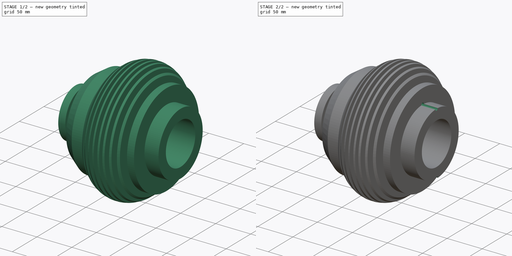
[diagram: build sequence overview — one tinted view per stage of 2, left to right]
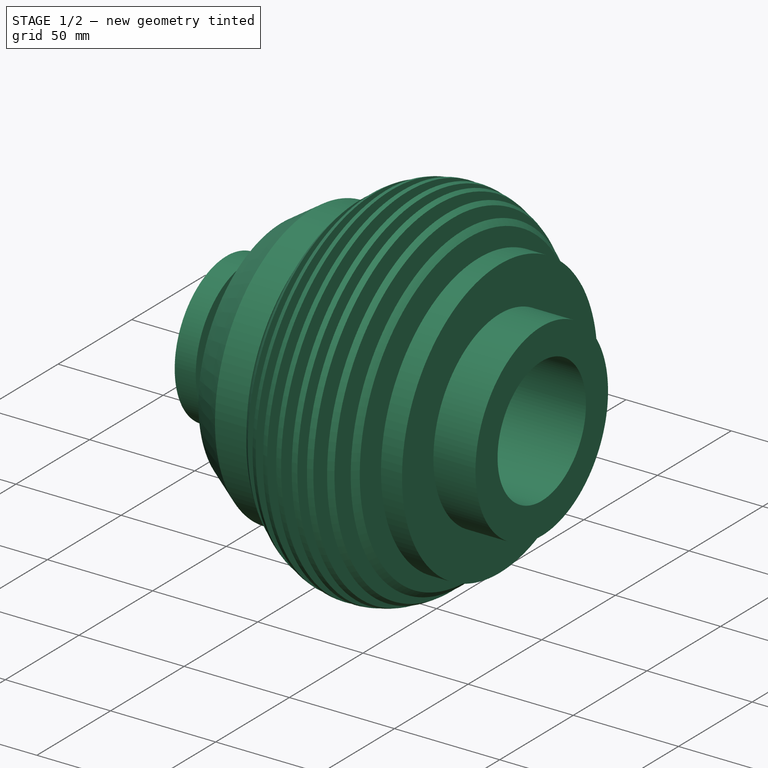
[diagram: stage 1 of 2 — iso view after this stage's code; geometry added in this stage tinted green]
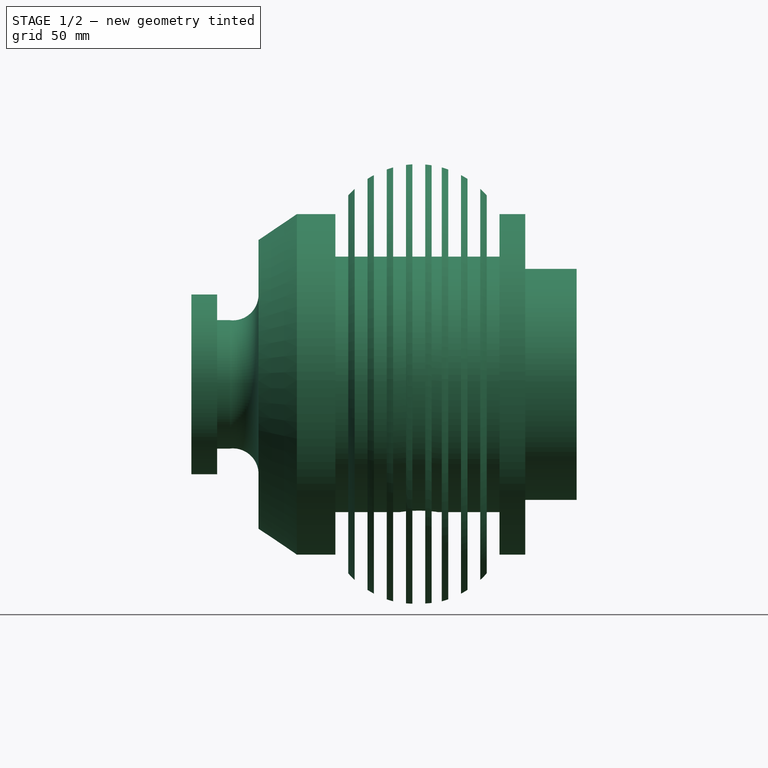
[diagram: stage 1 of 2 — front view after this stage's code; geometry added in this stage tinted green]
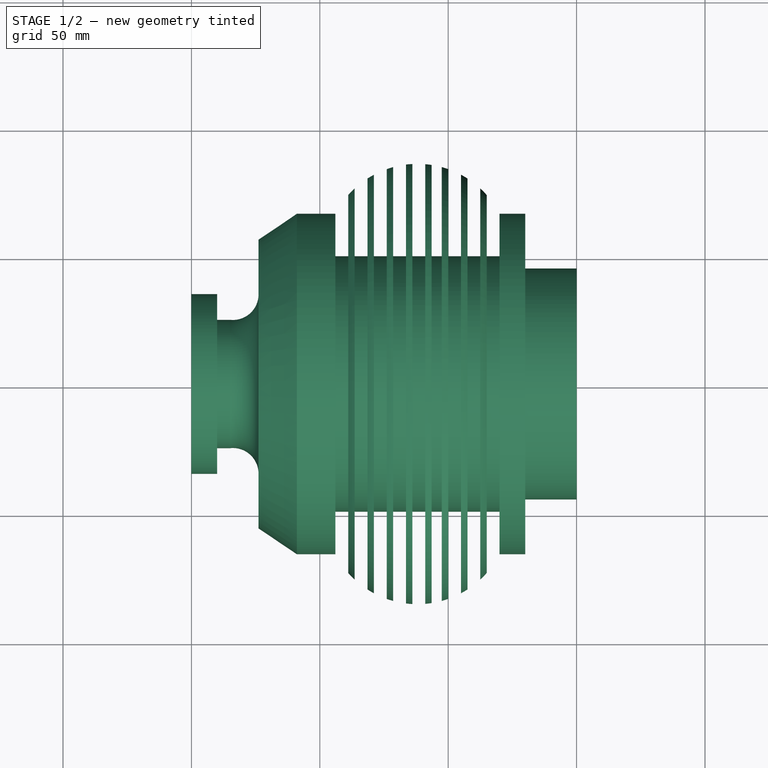
[diagram: stage 1 of 2 — top view after this stage's code; geometry added in this stage tinted green]
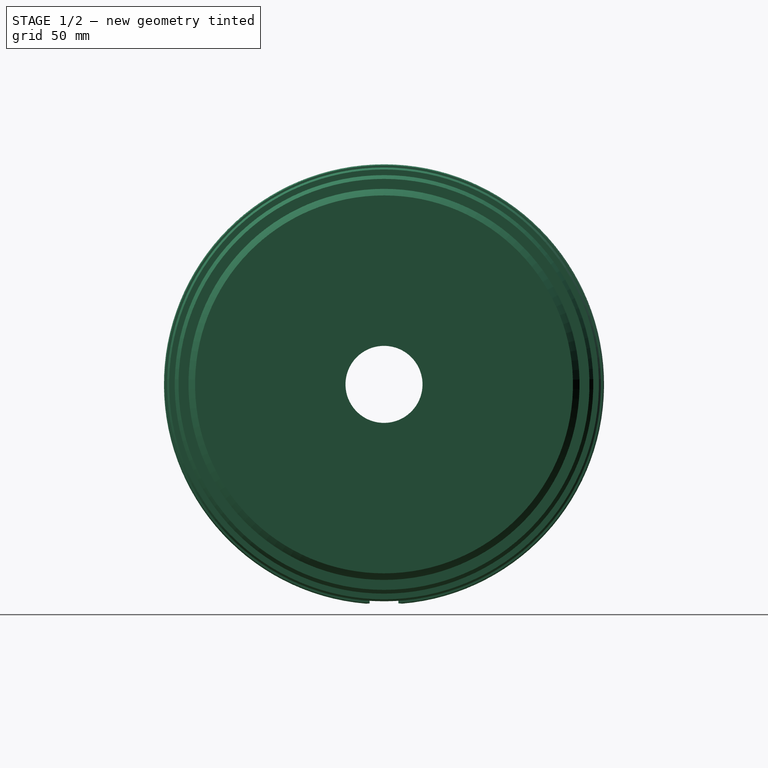
[diagram: stage 1 of 2 — right view after this stage's code; geometry added in this stage tinted green]
FCSTD DOCUMENT  (FreeCAD 1.0R39285 (Git))
Label: worksheet_exe.6
License: All rights reserved
LicenseURL: https://en.wikipedia.org/wiki/All_rights_reserved
objects: Sketcher::SketchObject×3, PartDesign::Pocket×2, PartDesign::Revolution×1, PartDesign::Plane×1, PartDesign::Body×1
note: 17 computed .brp shape members not serialized (recipe doc carries the construction recipe); baked Part::Feature solids carry a one-line shape summary decoded from their .brp

FEATURE [Sketcher::SketchObject] Sketch
  ArcFitTolerance = 1e-06
  AttachmentSupport = -> [XZ_Plane]
  FullyConstrained = true
  MakeInternals = false
  MapMode = 5
  Placement = pos=(0,0,0) rot=(1,0,0;1.5708rad)
  sketch-geometry (59):
    g0: LineSegment StartX=0 StartY=15 StartZ=0 EndX=50 EndY=15 EndZ=0
    g1: LineSegment StartX=50 StartY=15 StartZ=0 EndX=50 EndY=30 EndZ=0
    g2: LineSegment StartX=50 StartY=30 StartZ=0 EndX=150 EndY=30 EndZ=0
    g3: LineSegment StartX=150 StartY=30 StartZ=0 EndX=150 EndY=45 EndZ=0
    g4: LineSegment StartX=150 StartY=45 StartZ=0 EndX=130 EndY=45 EndZ=0
    g5: LineSegment StartX=130 StartY=45 StartZ=0 EndX=130 EndY=66.3 EndZ=0
    g6: LineSegment StartX=130 StartY=66.3 StartZ=0 EndX=120 EndY=66.3 EndZ=0
    g7: LineSegment StartX=120 StartY=66.3 StartZ=0 EndX=120 EndY=49.7446 EndZ=0
    g8: LineSegment StartX=120 StartY=49.7446 StartZ=0 EndX=115 EndY=49.7446 EndZ=0
    g9: LineSegment StartX=15 StartY=25 StartZ=0 EndX=10 EndY=25 EndZ=0
    g10: LineSegment StartX=10 StartY=25 StartZ=0 EndX=10 EndY=35 EndZ=0
    g11: LineSegment StartX=10 StartY=35 StartZ=0 EndX=0 EndY=35 EndZ=0
    g12: LineSegment StartX=0 StartY=35 StartZ=0 EndX=0 EndY=15 EndZ=0
    g13: ArcOfCircle CenterX=16.1424 CenterY=34.9345 CenterZ=0 NormalX=0 NormalY=0 NormalZ=1 AngleXU=0 Radius=10 StartAngle=4.5979 EndAngle=6.28319
    g14: LineSegment StartX=26.1424 StartY=34.9345 StartZ=0 EndX=26.1424 EndY=56.2345 EndZ=0
    g15: LineSegment StartX=26.1424 StartY=56.2345 StartZ=0 EndX=41.0651 EndY=66.3 EndZ=0
    g16: LineSegment StartX=41.0651 StartY=66.3 StartZ=0 EndX=56.0651 EndY=66.3 EndZ=0
    g17: LineSegment StartX=56.0651 StartY=66.3 StartZ=0 EndX=56.0651 EndY=49.7446 EndZ=0
    g18: ArcOfCircle [constr] CenterX=88.0326 CenterY=49.7446 CenterZ=0 NormalX=0 NormalY=0 NormalZ=1 AngleXU=0 Radius=36 StartAngle=0.477852 EndAngle=2.66374
    g19: LineSegment StartX=56.0651 StartY=49.7446 StartZ=0 EndX=61.0651 EndY=49.7446 EndZ=0
    g20: LineSegment StartX=61.0651 StartY=49.7446 StartZ=0 EndX=61.0651 EndY=73.5932 EndZ=0
    g21: GeomPoint X=63.5651 Y=49.7446 Z=0
    g22: LineSegment StartX=63.5651 StartY=49.7446 StartZ=0 EndX=63.5651 EndY=76.1518 EndZ=0
    g23: LineSegment StartX=63.5651 StartY=49.7446 StartZ=0 EndX=68.5651 EndY=49.7446 EndZ=0
    g24: GeomPoint X=71.0651 Y=49.7446 Z=0
    g25: LineSegment StartX=68.5651 StartY=49.7446 StartZ=0 EndX=68.5651 EndY=80.0269 EndZ=0
    g26: LineSegment StartX=71.0651 StartY=49.7446 StartZ=0 EndX=71.0651 EndY=81.4952 EndZ=0
    g27: LineSegment StartX=71.0651 StartY=49.7446 StartZ=0 EndX=76.0651 EndY=49.7446 EndZ=0
    g28: LineSegment StartX=76.0651 StartY=49.7446 StartZ=0 EndX=76.0651 EndY=83.6972 EndZ=0
    g29: GeomPoint X=78.5651 Y=49.7446 Z=0
    g30: LineSegment StartX=78.5651 StartY=49.7446 StartZ=0 EndX=78.5651 EndY=84.4774 EndZ=0
    g31: LineSegment StartX=78.5651 StartY=49.7446 StartZ=0 EndX=83.5651 EndY=49.7446 EndZ=0
    g32: LineSegment StartX=83.5651 StartY=49.7446 StartZ=0 EndX=83.5651 EndY=85.4663 EndZ=0
    g33: GeomPoint X=86.0651 Y=49.7446 Z=0
    g34: LineSegment StartX=86.0651 StartY=49.7446 StartZ=0 EndX=86.0651 EndY=85.6908 EndZ=0
    g35: LineSegment StartX=86.0651 StartY=49.7446 StartZ=0 EndX=91.0651 EndY=49.7446 EndZ=0
    g36: LineSegment StartX=91.0651 StartY=49.7446 StartZ=0 EndX=91.0651 EndY=85.6166 EndZ=0
    g37: GeomPoint X=93.5651 Y=49.7446 Z=0
    g38: LineSegment StartX=93.5651 StartY=49.7446 StartZ=0 EndX=93.5651 EndY=85.3169 EndZ=0
    g39: LineSegment StartX=115 StartY=49.7446 StartZ=0 EndX=115 EndY=73.5932 EndZ=0
    g40: GeomPoint X=112.5 Y=49.7446 Z=0
    g41: LineSegment StartX=112.5 StartY=49.7446 StartZ=0 EndX=112.5 EndY=76.1518 EndZ=0
    g42: LineSegment StartX=112.5 StartY=49.7446 StartZ=0 EndX=107.5 EndY=49.7446 EndZ=0
    g43: LineSegment StartX=107.5 StartY=49.7446 StartZ=0 EndX=107.5 EndY=80.0269 EndZ=0
    g44: GeomPoint X=105 Y=49.7446 Z=0
    g45: LineSegment StartX=105 StartY=49.7446 StartZ=0 EndX=105 EndY=81.4952 EndZ=0
    g46: LineSegment StartX=105 StartY=49.7446 StartZ=0 EndX=100 EndY=49.7446 EndZ=0
    g47: LineSegment StartX=93.5651 StartY=49.7446 StartZ=0 EndX=97.5 EndY=49.7446 EndZ=0
    g48: LineSegment StartX=97.5 StartY=49.7446 StartZ=0 EndX=97.5 EndY=84.4774 EndZ=0
    g49: LineSegment StartX=100 StartY=49.7446 StartZ=0 EndX=100 EndY=83.6972 EndZ=0
    g50: ArcOfCircle CenterX=88.0326 CenterY=49.7446 CenterZ=0 NormalX=0 NormalY=0 NormalZ=1 AngleXU=0 Radius=36 StartAngle=2.31808 EndAngle=2.41749
    g51: ArcOfCircle CenterX=88.0326 CenterY=49.7446 CenterZ=0 NormalX=0 NormalY=0 NormalZ=1 AngleXU=0 Radius=36 StartAngle=2.06158 EndAngle=2.14214
    g52: ArcOfCircle CenterX=88.0326 CenterY=49.7446 CenterZ=0 NormalX=0 NormalY=0 NormalZ=1 AngleXU=0 Radius=36 StartAngle=1.83691 EndAngle=1.90967
    g53: ArcOfCircle CenterX=88.0326 CenterY=49.7446 CenterZ=0 NormalX=0 NormalY=0 NormalZ=1 AngleXU=0 Radius=36 StartAngle=1.62547 EndAngle=1.69521
    g54: ArcOfCircle CenterX=88.0326 CenterY=49.7446 CenterZ=0 NormalX=0 NormalY=0 NormalZ=1 AngleXU=0 Radius=36 StartAngle=1.4165 EndAngle=1.48646
    g55: ArcOfCircle CenterX=88.0326 CenterY=49.7446 CenterZ=0 NormalX=0 NormalY=0 NormalZ=1 AngleXU=0 Radius=36 StartAngle=1.23192 EndAngle=1.30468
    g56: ArcOfCircle CenterX=88.0326 CenterY=49.7446 CenterZ=0 NormalX=0 NormalY=0 NormalZ=1 AngleXU=0 Radius=36 StartAngle=0.999453 EndAngle=1.08001
    g57: ArcOfCircle CenterX=88.0326 CenterY=49.7446 CenterZ=0 NormalX=0 NormalY=0 NormalZ=1 AngleXU=0 Radius=36 StartAngle=0.7241 EndAngle=0.823509
    g58: LineSegment [constr] StartX=0 StartY=0 StartZ=0 EndX=230 EndY=0 EndZ=0
  constraints (163):
    c: Coincident(g0,g1)
    c: Vertical(g1)
    c: Coincident(g1,g2)
    c: Horizontal(g2)
    c: Coincident(g2,g3)
    c: Vertical(g3)
    c: Coincident(g3,g4)
    c: Horizontal(g4)
    c: Coincident(g4,g5)
    c: Vertical(g5)
    c: Coincident(g5,g6)
    c: Horizontal(g6)
    c: Coincident(g6,g7)
    c: Vertical(g7)
    c: Coincident(g7,g8)
    c: Coincident(g9,g10)
    c: Coincident(g10,g11)
    c: Horizontal(g11)
    c: Coincident(g11,g12)
    c: Vertical(g12)
    c: DistanceX(g0,g0) = 50
    c: DistanceX(g2,g2) = 100
    c: DistanceY(g3,g3) = 15
    c: Vertical(g10)
    c: DistanceX(g11,g11) = 10
    c: DistanceX(g9,g9) = 5
    c: DistanceY(g2,g5) = 36.3
    c: DistanceY(g1,g1) = 15
    c: DistanceX(g4,g4) = 20
    c: DistanceX(g6,g6) = 10
    c: Vertical(g14)
    c: Coincident(g14,g15)
    c: Coincident(g15,g16)
    c: Horizontal(g16)
    c: Coincident(g16,g17)
    c: Vertical(g17)
    c: DistanceY(g14,g14) = 21.3
    c: DistanceX(g16,g16) = 15
    c: Angle(g15,g16) = 2.54818
    c: Radius(g13) = 10
    c: Horizontal(g6,g16)
    c: Distance(g15,g15) = 18
    c: Coincident(g13,g9)
    c: Horizontal(g9)
    c: Tangent(g14,g13) = -1.5708
    c: Coincident(g18,g16)
    c: Coincident(g18,g6)
    c: Distance(g19) = 5
    c: Horizontal(g19)
    c: Coincident(g19,g17)
    c: DistanceX(g8,g8) = 5
    c: Horizontal(g8)
    c: Horizontal(g18,g17)
    c: Coincident(g19,g20)
    c: PointOnObject(g20,g18)
    c: Vertical(g20)
    c: Horizontal(g21,g19)
    c: DistanceX(g19,g21) = 2.5
    c: Coincident(g22,g21)
    c: Vertical(g22)
    c: Distance(g23) = 5
    c: Horizontal(g23)
    c: Coincident(g23,g21)
    c: Horizontal(g24,g17)
    c: DistanceX(g23,g24) = 2.5
    c: Coincident(g25,g23)
    c: PointOnObject(g25,g18)
    c: Vertical(g25)
    c: Coincident(g26,g24)
    c: Vertical(g26)
    c: Distance(g27) = 5
    c: Horizontal(g27)
    c: Coincident(g27,g24)
    c: Coincident(g28,g27)
    c: PointOnObject(g28,g18)
    c: Vertical(g28)
    c: Horizontal(g29,g27)
    c: Distance(g29,g27) = 2.5
    c: Coincident(g30,g29)
    c: Vertical(g30)
    c: Distance(g31) = 5
    c: Horizontal(g31)
    c: Coincident(g31,g29)
    c: Coincident(g32,g31)
    c: Vertical(g32)
    c: PointOnObject(g32,g18)
    c: Horizontal(g7,g31)
    c: Horizontal(g33,g31)
    c: Distance(g33,g31) = 2.5
    c: Coincident(g34,g33)
    c: Vertical(g34)
    c: Distance(g35) = 5
    c: Horizontal(g35)
    c: Coincident(g35,g33)
    c: Coincident(g36,g35)
    c: Vertical(g36)
    c: PointOnObject(g36,g18)
    c: Horizontal(g37,g35)
    c: DistanceX(g35,g37) = 2.5
    c: Coincident(g38,g37)
    c: Vertical(g38)
    c: Coincident(g39,g8)
    c: PointOnObject(g39,g18)
    c: Vertical(g39)
    c: Horizontal(g8,g40)
    c: Distance(g8,g40) = 2.5
    c: Coincident(g41,g40)
    c: Vertical(g41)
    c: Distance(g42) = 5
    c: Horizontal(g42)
    c: Coincident(g42,g40)
    c: Coincident(g43,g42)
    c: PointOnObject(g43,g18)
    c: Vertical(g43)
    c: Horizontal(g42,g44)
    c: Coincident(g45,g44)
    c: Vertical(g45)
    c: Distance(g44,g42) = 2.5
    c: Distance(g46) = 5
    c: Horizontal(g46)
    c: Coincident(g46,g44)
    c: Horizontal(g47)
    c: Coincident(g47,g37)
    c: Coincident(g48,g47)
    c: PointOnObject(g48,g18)
    c: Vertical(g48)
    c: Coincident(g49,g46)
    c: Vertical(g49)
    c: DistanceX(g47,g46) = 2.5
    c: Coincident(g51,g50)
    c: Coincident(g51,g25)
    c: Coincident(g51,g26)
    c: Coincident(g52,g18)
    c: Coincident(g52,g28)
    c: Coincident(g52,g30)
    c: Coincident(g53,g18)
    c: Coincident(g53,g32)
    c: Coincident(g53,g34)
    c: Coincident(g55,g54)
    c: Coincident(g55,g48)
    c: Coincident(g55,g49)
    c: Coincident(g57,g56)
    c: Coincident(g57,g41)
    c: Coincident(g57,g39)
    c: Coincident(g56,g18)
    c: Coincident(g54,g18)
    c: Coincident(g50,g18)
    c: Coincident(g22,g50)
    c: Coincident(g50,g20)
    c: Coincident(g54,g38)
    c: Coincident(g36,g54)
    c: Coincident(g45,g56)
    c: Coincident(g43,g56)
    c: Radius(g18) = 36
    c: Coincident(g0,g12)
    c: Horizontal(g0)
    c: Coincident(g58,g-1)
    c: PointOnObject(g58,g-1)
    c: DistanceX(g58,g58) = 230
    c: DistanceY(g12,g12) = 20
    c: DistanceY(g10,g10) = 10
    c: DistanceY(g-1,g0) = 15
    c: Vertical(g0,g58)
FEATURE [PartDesign::Revolution] Revolution
  Angle = 360
  Angle2 = 60
  Axis = (1,0,0)
  Base = (0,0,0)
  Placement = pos=(0,0,0) rot=(1,0,0;1.5708rad)
  Profile = -> Sketch
  ReferenceAxis = -> X_Axis
  Refine = true
  Suppressed = false
  Type = 0
FEATURE [PartDesign::Plane] DatumPlane
  AttachmentOffset = pos=(0,0,0) rot=(1,0,0;1.5708rad)
  AttachmentSupport = -> [Revolution]
  Length = 206.001
  MapMode = 45
  Placement = pos=(48.5651,3e-16,0) rot=(0.707107,0.707107,0;3.14159rad)
  ResizeMode = 0
  Width = 209.635
FEATURE [Sketcher::SketchObject] Sketch001
  ArcFitTolerance = 1e-06
  AttachmentSupport = -> [DatumPlane]
  ExternalGeometry = -> [Revolution]
  FullyConstrained = false
  MakeInternals = false
  MapMode = 5
  Placement = pos=(48.5651,3e-16,0) rot=(0.707107,0.707107,0;3.14159rad)
  sketch-geometry (4):
    g0: GeomPoint X=0 Y=0 Z=0
    g1: Circle CenterX=0 CenterY=40 CenterZ=0 NormalX=0 NormalY=0 NormalZ=1 AngleXU=0 Radius=7.5
    g2: LineSegment [constr] StartX=49.7446 StartY=42.5 StartZ=0 EndX=49.7446 EndY=40 EndZ=0
    g3: LineSegment [constr] StartX=0 StartY=40 StartZ=0 EndX=49.7446 EndY=40 EndZ=0
  constraints (9):
    c: PointOnObject(g0,g-2)
    c: Diameter(g1) = 15
    c: PointOnObject(g1,g-2)
    c: Distance(g2) = 2.5
    c: Coincident(g2,g-3)
    c: Vertical(g2)
    c: Coincident(g3,g1)
    c: Coincident(g3,g2)
    c: Horizontal(g3)
FEATURE [PartDesign::Pocket] Pocket
  BaseFeature = -> Revolution
  Direction = (0,0,1)
  Length = 62
  Length2 = 5
  Placement = pos=(0,0,0) rot=(1,0,0;1.5708rad)
  Profile = -> Sketch001
  ReferenceAxis = -> Sketch001 [N_Axis]
  Refine = true
  Reversed = true
  Suppressed = false
  Type = 1
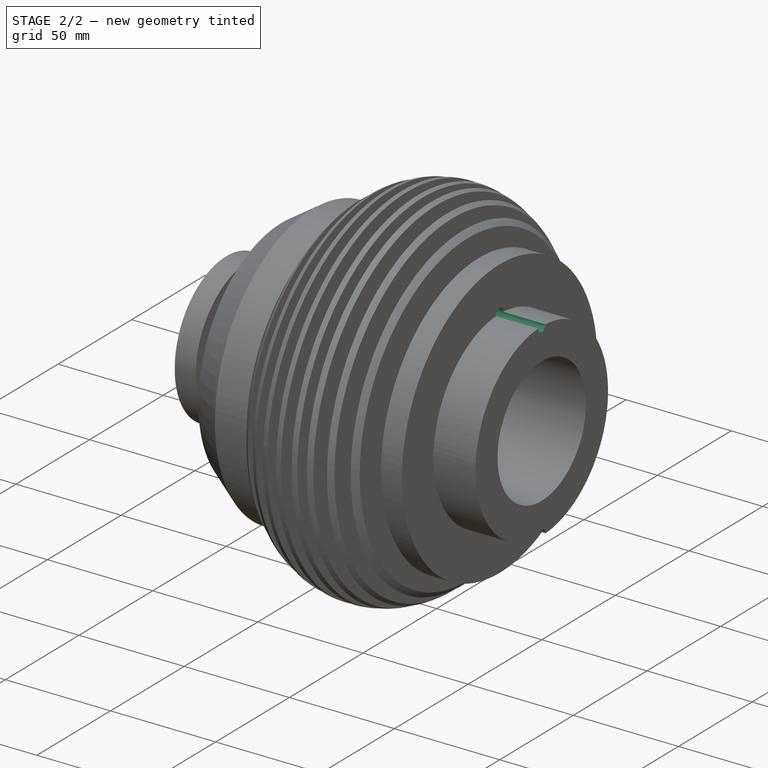
[diagram: stage 2 of 2 — iso view after this stage's code; geometry added in this stage tinted green]
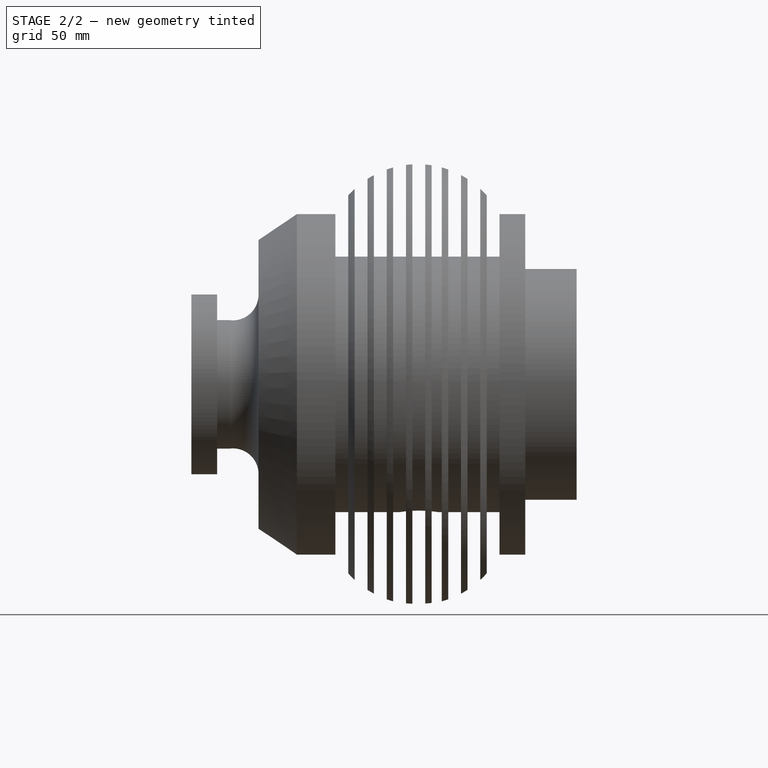
[diagram: stage 2 of 2 — front view after this stage's code; geometry added in this stage tinted green]
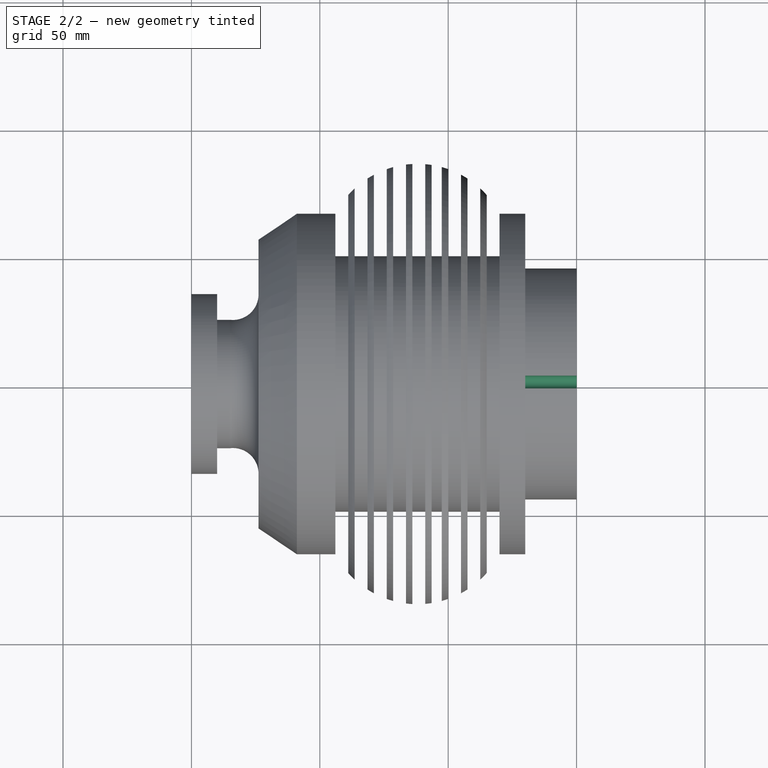
[diagram: stage 2 of 2 — top view after this stage's code; geometry added in this stage tinted green]
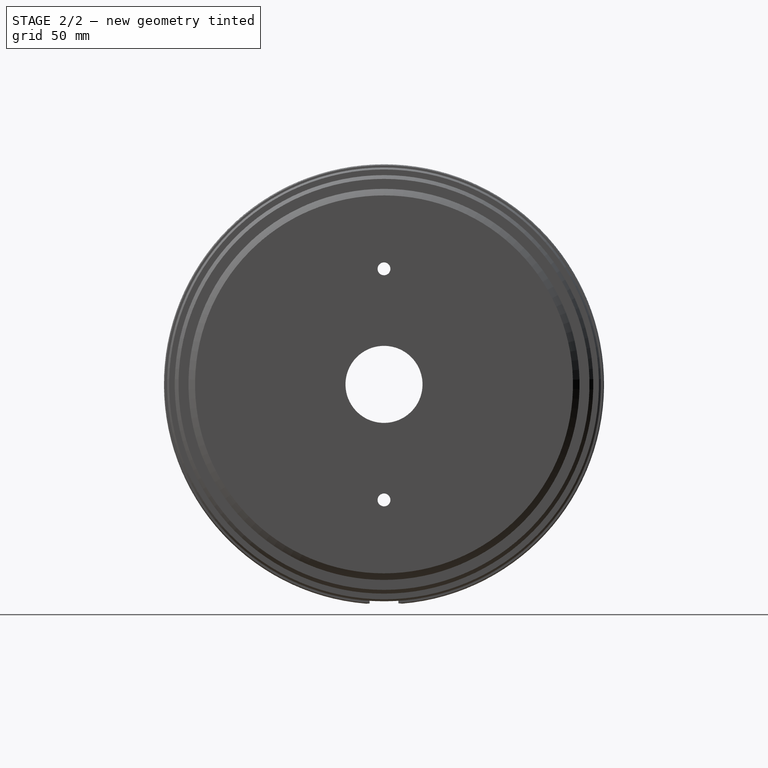
[diagram: stage 2 of 2 — right view after this stage's code; geometry added in this stage tinted green]
FEATURE [Sketcher::SketchObject] Sketch002
  ArcFitTolerance = 1e-06
  AttachmentSupport = -> [Pocket]
  FullyConstrained = true
  MakeInternals = false
  MapMode = 5
  Placement = pos=(26.1424,0,0) rot=(0.707107,0,-0.707107;3.14159rad)
  sketch-geometry (2):
    g0: Circle CenterX=-45 CenterY=0 CenterZ=0 NormalX=0 NormalY=0 NormalZ=1 AngleXU=0 Radius=2.5
    g1: Circle CenterX=45 CenterY=0 CenterZ=0 NormalX=0 NormalY=0 NormalZ=1 AngleXU=0 Radius=2.5
  constraints (6):
    c: PointOnObject(g0,g-1)
    c: PointOnObject(g1,g-1)
    c: Diameter(g0) = 5
    c: Diameter(g1) = 5
    c: DistanceX(g-1,g1) = 45
    c: DistanceX(g0,g-1) = 45
FEATURE [PartDesign::Pocket] Pocket001
  BaseFeature = -> Pocket
  Direction = (1,0,2e-16)
  Length = 6
  Length2 = 5
  Placement = pos=(0,0,0) rot=(1,0,0;1.5708rad)
  Profile = -> Sketch002
  ReferenceAxis = -> Sketch002 [N_Axis]
  Refine = true
  Suppressed = false
  Type = 1
FEATURE [PartDesign::Body] Body
  AllowCompound = false
  Group = -> [Sketch,Revolution,DatumPlane,Sketch001,Pocket,Sketch002,Pocket001]
  Origin = -> Origin
  Tip = -> Pocket001
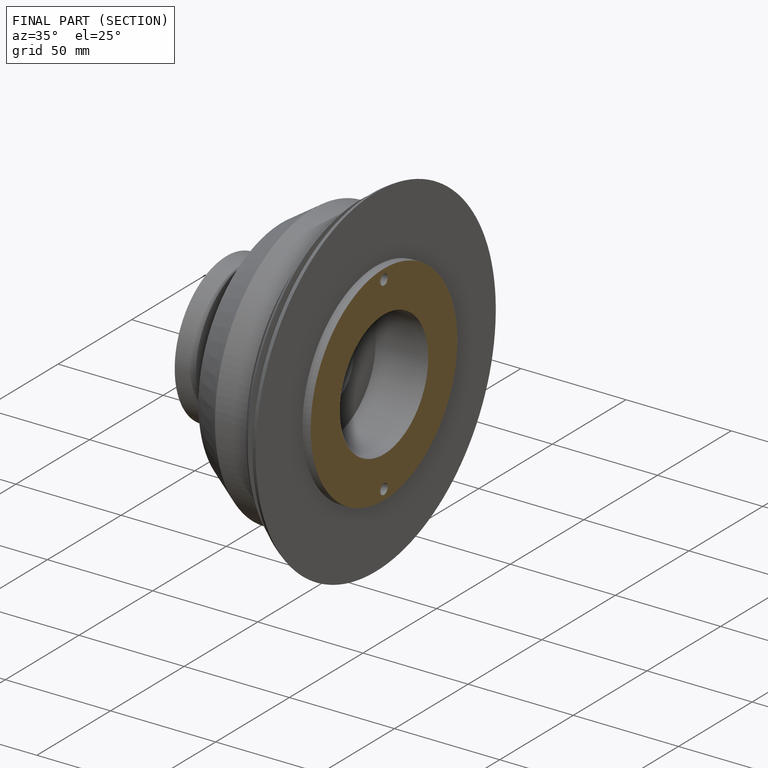
[diagram: finished part — half-section view (interior)]
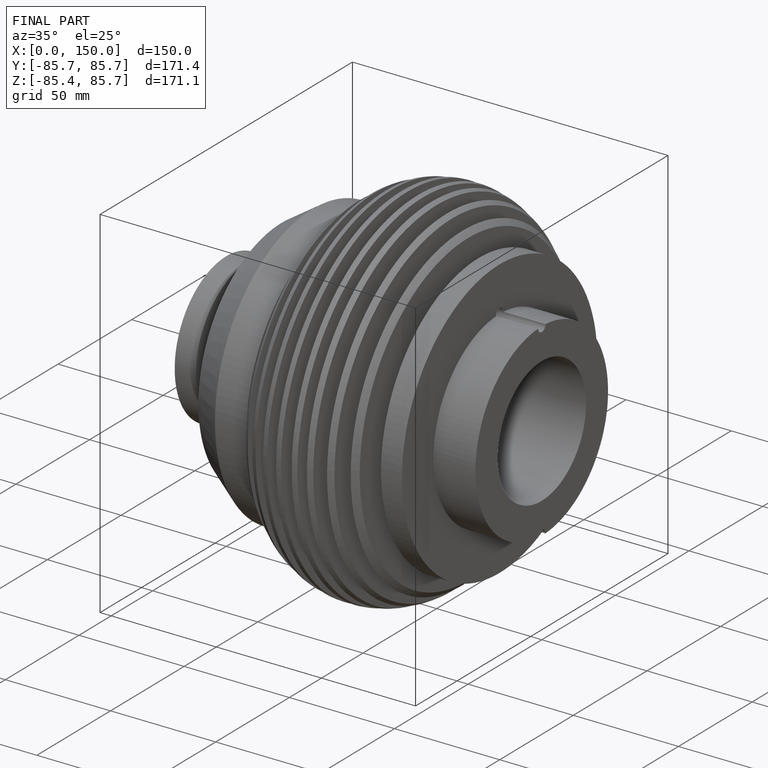
[diagram: finished part — iso view with bounding-box wireframe]
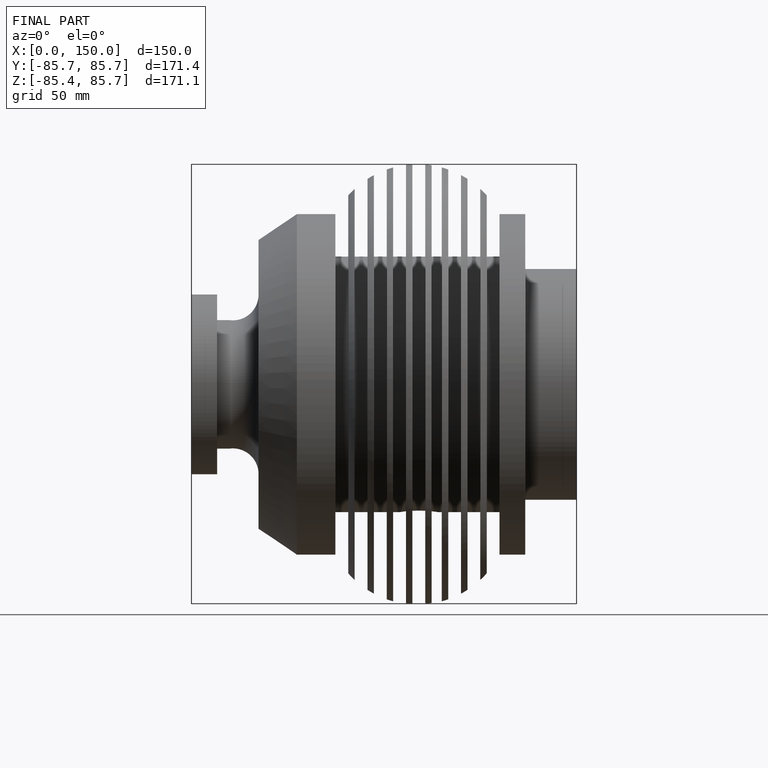
[diagram: finished part — front view with bounding-box wireframe]
